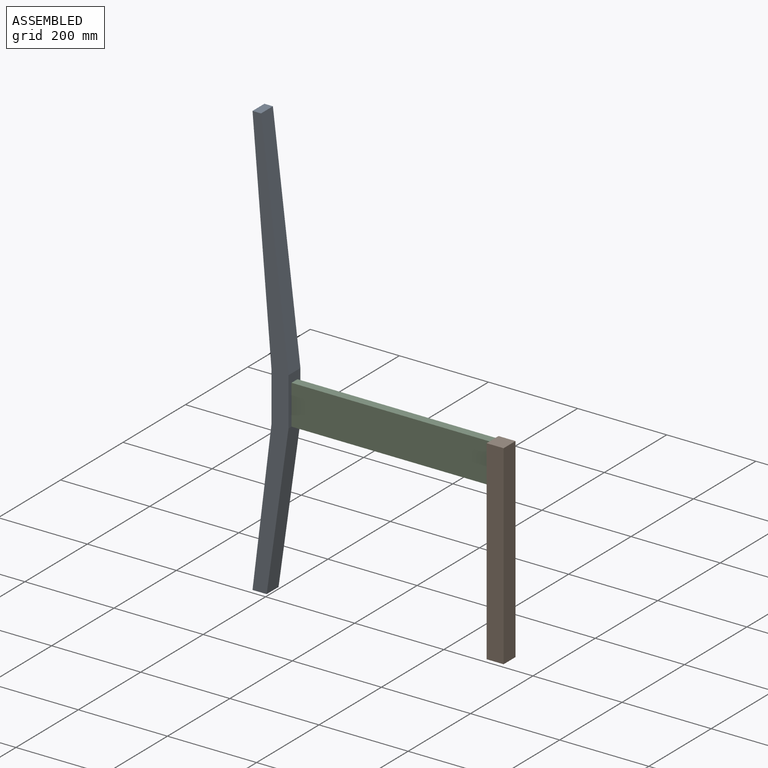
[diagram: assembled view]
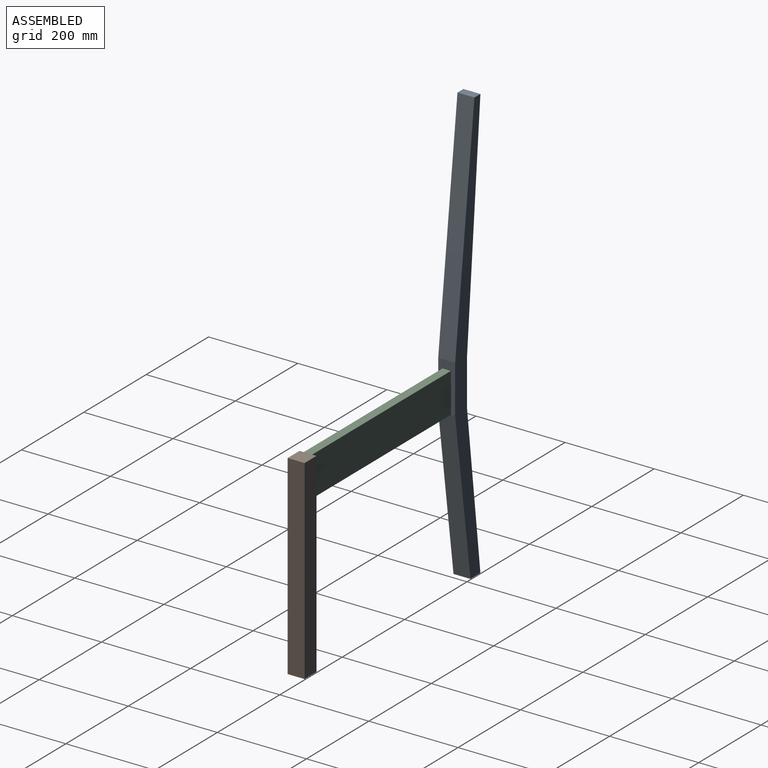
[diagram: assembled view, second angle]
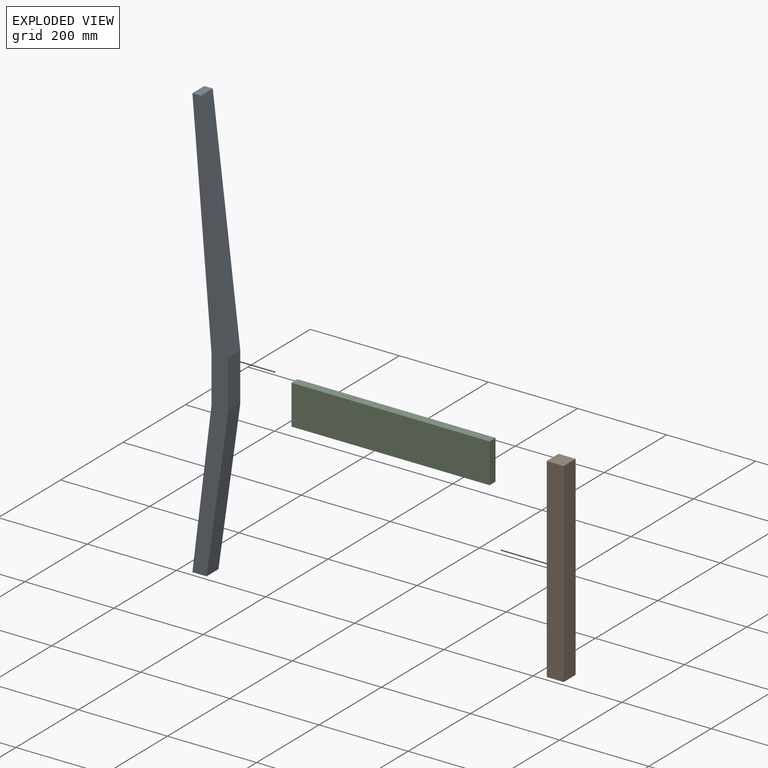
[diagram: exploded view]
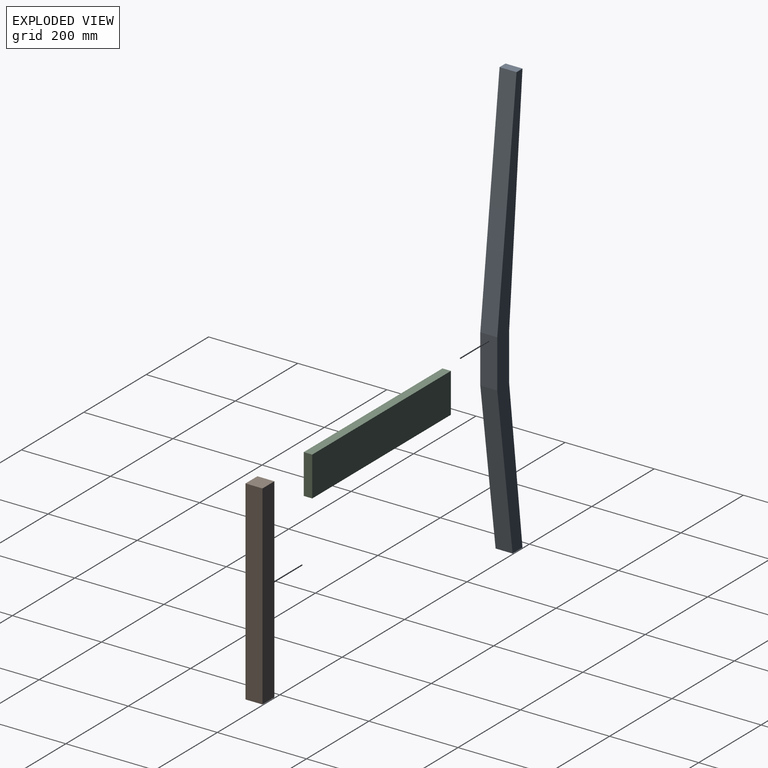
[diagram: exploded view, second angle]
ASSEMBLY  parts=3 mates=2
PART A: 10 faces, bbox 80.8x971.6x38.1 mm
  f0: plane 38.1x19.05mm, normal (0,1,0), area 725.8mm2, adj f2,f3,f6,f8
  f1: plane 38.1x31.75mm, normal (0,-1,0), area 1209.7mm2, adj f2,f3,f4,f7
  f2: plane 971.55x80.83mm, normal (0,0,-1), area 31008mm2, adj f0,f1,f4,f5,f6,f7,f8,f9
  f3: plane 971.55x80.83mm, normal (0,0,1), area 31008mm2, adj f0,f1,f4,f5,f6,f7,f8,f9
  f4: plane 349.25x42.73mm, normal (-0.99,0.12,0), area 13405.7mm2, adj f1,f2,f3,f5
  f5: plane 107.95x38.1mm, normal (-1,0,0), area 4112.9mm2, adj f2,f3,f4,f6
  f6: plane 514.35x42.73mm, normal (-1,-0.08,0), area 19664.3mm2, adj f0,f2,f3,f5
  f7: plane 349.25x49.08mm, normal (0.99,-0.14,0), area 13437.2mm2, adj f1,f2,f3,f9
  f8: plane 514.35x61.78mm, normal (0.99,0.12,0), area 19737.6mm2, adj f0,f2,f3,f9
  f9: plane 107.95x38.1mm, normal (1,0,0), area 4112.9mm2, adj f2,f3,f7,f8
PART B: 6 faces, bbox 438.2x38.1x38.1 mm
  f0: plane 438.15x38.1mm, normal (0,1,0), area 16693.5mm2, adj f1,f3,f4,f5
  f1: plane 438.15x38.1mm, normal (0,0,1), area 16693.5mm2, adj f0,f2,f4,f5
  f2: plane 438.15x38.1mm, normal (0,-1,0), area 16693.5mm2, adj f1,f3,f4,f5
  f3: plane 438.15x38.1mm, normal (0,0,-1), area 16693.5mm2, adj f0,f2,f4,f5
  f4: plane 38.1x38.1mm, normal (1,0,0), area 1451.6mm2, adj f0,f1,f2,f3
  f5: plane 38.1x38.1mm, normal (-1,0,0), area 1451.6mm2, adj f0,f1,f2,f3
PART C: 6 faces, bbox 444.5x88.9x19.1 mm
  f0: plane 444.5x19.05mm, normal (0,1,0), area 8467.7mm2, adj f1,f3,f4,f5
  f1: plane 444.5x88.9mm, normal (0,0,1), area 39516.1mm2, adj f0,f2,f4,f5
  f2: plane 444.5x19.05mm, normal (0,-1,0), area 8467.7mm2, adj f1,f3,f4,f5
  f3: plane 444.5x88.9mm, normal (0,0,-1), area 39516.1mm2, adj f0,f2,f4,f5
  f4: plane 88.9x19.05mm, normal (1,0,0), area 1693.5mm2, adj f0,f1,f2,f3
  f5: plane 88.9x19.05mm, normal (-1,0,0), area 1693.5mm2, adj f0,f1,f2,f3
PLACE A rot(axis=(1,0,0),90deg) t=(-15.88,19.05,0)mm
PLACE B rot(axis=(0,-1,0),90deg) t=(528.51,0,0)mm
PLACE C rot(axis=(1,0,0),90deg) t=(64.96,0,393.7)mm
MATE fastened A.f9 <-> C.f5  axis (1,0,0) through (64.96,0,349.25)mm
MATE fastened C.f4 <-> B.f1  axis (1,0,0) through (509.46,0,438.15)mm
